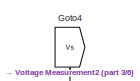
[diagram: root canvas - part 1/6, top left region]
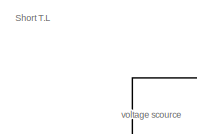
[diagram: root canvas - part 2/6, top left region]
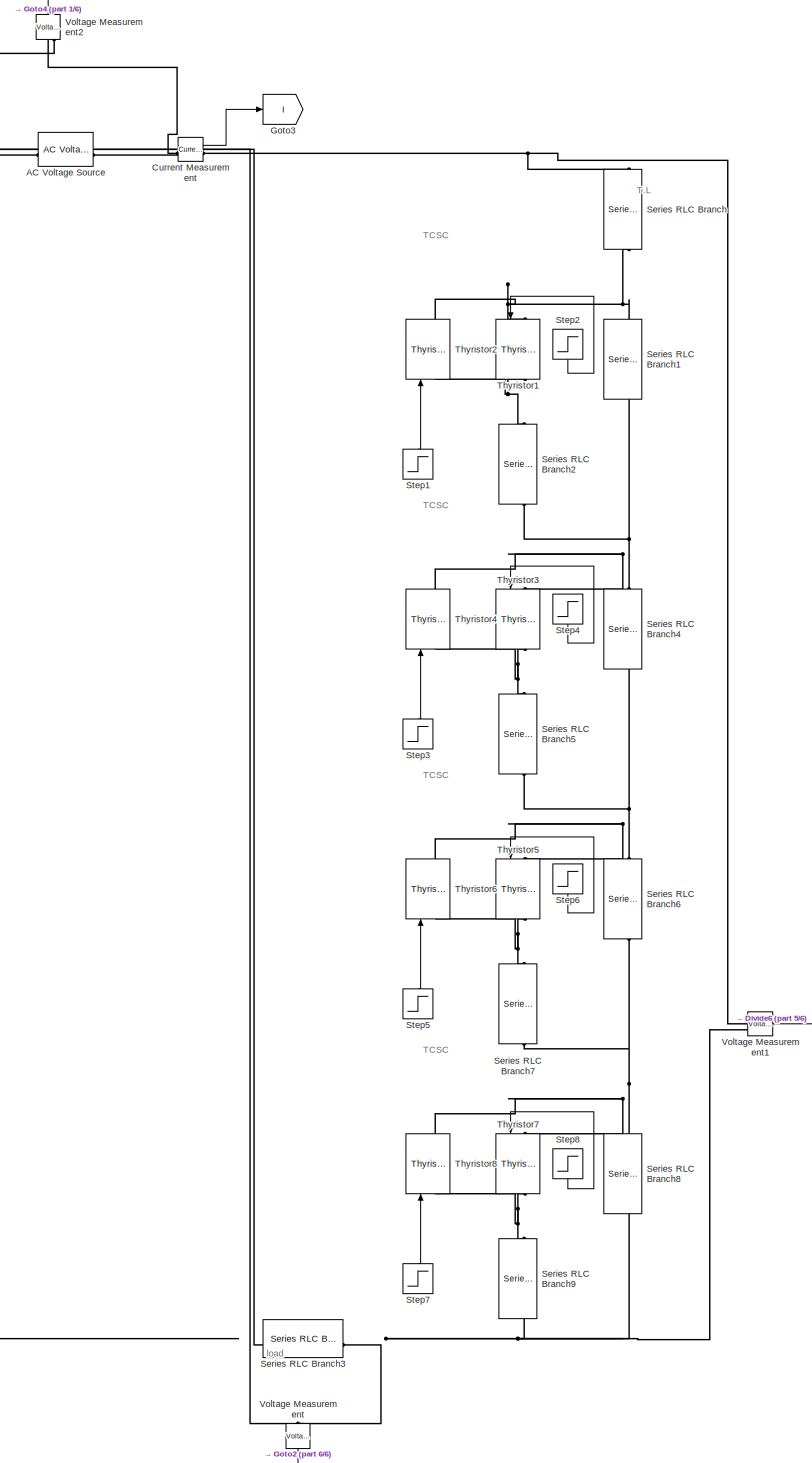
[diagram: root canvas - part 3/6, left side, full height]
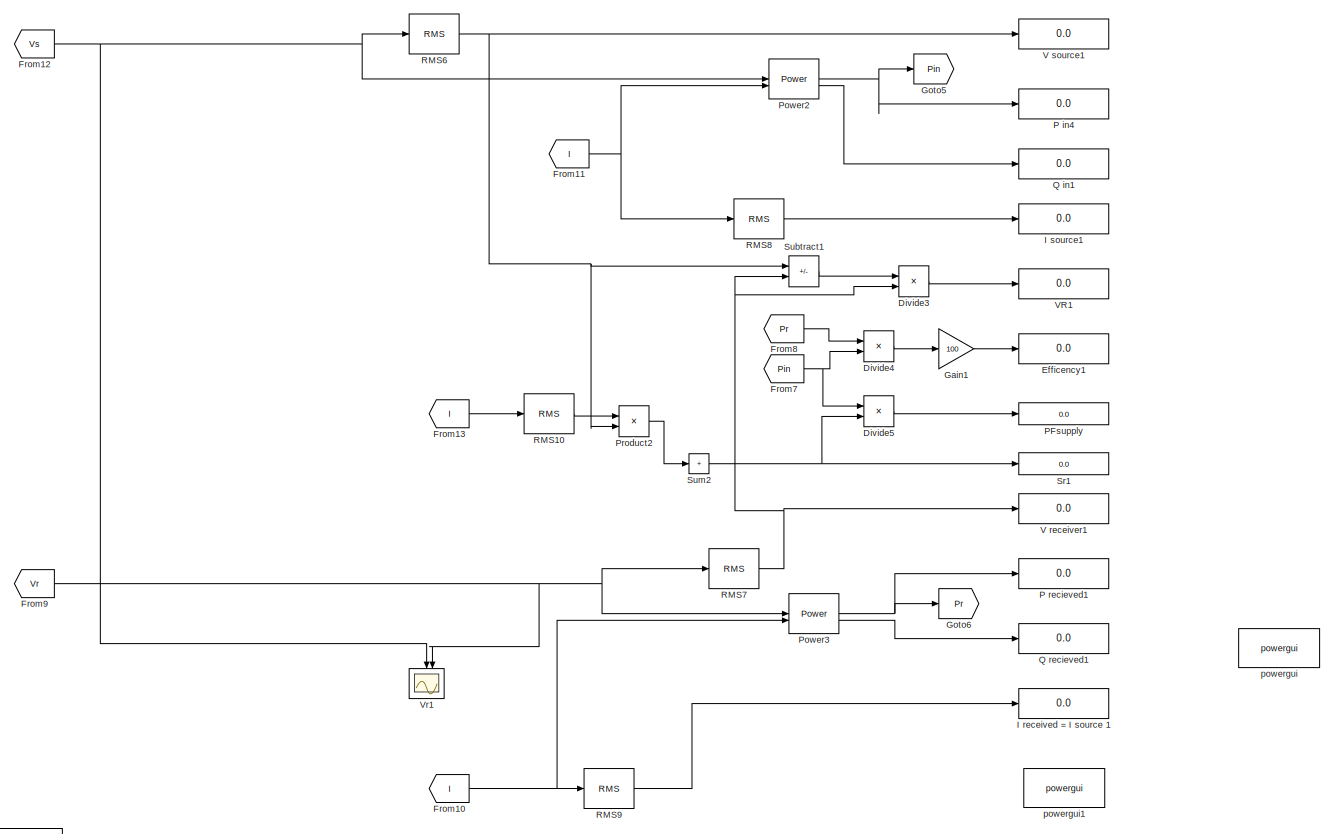
[diagram: root canvas - part 4/6, middle right region]
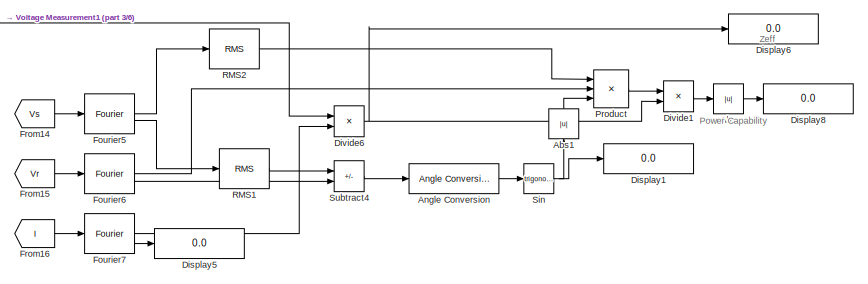
[diagram: root canvas - part 5/6, bottom center region]
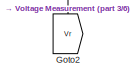
[diagram: root canvas - part 6/6, bottom left region]
MODEL slx_5b7cafe6de2c
KIND model
CONFIG AbsTol = auto
CONFIG EnableMultiTasking = off
CONFIG FixedStep = auto
CONFIG MaxStep = auto
CONFIG MinStep = auto
CONFIG RelTol = 1e-3
CONFIG SampleTimeConstraint = Unconstrained
CONFIG SolverName = VariableStepAuto
CONFIG StartTime = 0.0
CONFIG StopTime = 50
WORKSPACE source: mxarray member
WORKSPACE step = 1
BLOCK [Reference] AC Voltage Source  REF=spsACVoltageSourceLib/AC Voltage Source
  NameLocation = left
  SourceBlock = spsACVoltageSourceLib/AC Voltage Source
  SourceType = AC Voltage Source
BLOCK [Abs] Abs
  SaturateOnIntegerOverflow = off
BLOCK [Abs] Abs1
  NameLocation = right
  SaturateOnIntegerOverflow = off
BLOCK [Reference] Angle Conversion  REF=aerolibconvert2/Angle Conversion
  SourceBlock = aerolibconvert2/Angle Conversion
  SourceType = Angle Conversion
BLOCK [Reference] Current Measurement  REF=spsCurrentMeasurementLib/Current Measurement
  LibrarySourceBlock = sps_lib/Sensors and Measurements/Current Measurement
  SourceBlock = spsCurrentMeasurementLib/Current Measurement
  SourceType = Current Measurement
  UserDataPersistent = on
BLOCK [Display] Display1
  Decimation = 1
BLOCK [Display] Display5
  Decimation = 1
BLOCK [Display] Display6
  Decimation = 1
BLOCK [Display] Display8
  Decimation = 1
BLOCK [Product] Divide1
  Inputs = */
BLOCK [Product] Divide3
  Inputs = */
BLOCK [Product] Divide4
  Inputs = */
BLOCK [Product] Divide5
  Inputs = */
BLOCK [Product] Divide6
  Inputs = */
BLOCK [Display] Efficency1
  Decimation = 1
BLOCK [Reference] Fourier5  REF=spsFourierLib/Fourier
  LibrarySourceBlock = sps_lib/Sensors and Measurements/Fourier
  SourceBlock = spsFourierLib/Fourier
  SourceType = Fourier
BLOCK [Reference] Fourier6  REF=spsFourierLib/Fourier
  LibrarySourceBlock = sps_lib/Sensors and Measurements/Fourier
  SourceBlock = spsFourierLib/Fourier
  SourceType = Fourier
BLOCK [Reference] Fourier7  REF=spsFourierLib/Fourier
  LibrarySourceBlock = sps_lib/Sensors and Measurements/Fourier
  SourceBlock = spsFourierLib/Fourier
  SourceType = Fourier
BLOCK [From] From10
  GotoTag = I
BLOCK [From] From11
  GotoTag = I
BLOCK [From] From12
  GotoTag = Vs
BLOCK [From] From13
  GotoTag = I
BLOCK [From] From14
  GotoTag = Vs
BLOCK [From] From15
  GotoTag = Vr
BLOCK [From] From16
  GotoTag = I
BLOCK [From] From7
  GotoTag = Pin
BLOCK [From] From8
  GotoTag = Pr
BLOCK [From] From9
  GotoTag = Vr
BLOCK [Gain] Gain1
  Gain = 100
BLOCK [Goto] Goto2
  GotoTag = Vr
  NameLocation = left
BLOCK [Goto] Goto3
  GotoTag = I
BLOCK [Goto] Goto4
  GotoTag = Vs
  NameLocation = right
BLOCK [Goto] Goto5
  GotoTag = Pin
BLOCK [Goto] Goto6
  GotoTag = Pr
BLOCK [Display] I received = I source 1
  Decimation = 1
BLOCK [Display] I source1
  Decimation = 1
BLOCK [Display] P in4
  Decimation = 1
BLOCK [Display] P recieved1
  Decimation = 1
BLOCK [Display] PFsupply
  Decimation = 1
BLOCK [Reference] Power2  REF=spsPowerLib/Power
  LibrarySourceBlock = sps_lib/Sensors and Measurements/Power
  SourceBlock = spsPowerLib/Power
  SourceType = Power
BLOCK [Reference] Power3  REF=spsPowerLib/Power
  LibrarySourceBlock = sps_lib/Sensors and Measurements/Power
  SourceBlock = spsPowerLib/Power
  SourceType = Power
BLOCK [Product] Product
  Inputs = 3
BLOCK [Product] Product2
BLOCK [Display] Q in1
  Decimation = 1
BLOCK [Display] Q recieved1
  Decimation = 1
BLOCK [Reference] RMS1  REF=spsRMSLib/RMS
  LibrarySourceBlock = sps_lib/Sensors and Measurements/RMS
  SourceBlock = spsRMSLib/RMS
  SourceType = RMS
BLOCK [Reference] RMS10  REF=spsRMSLib/RMS
  LibrarySourceBlock = sps_lib/Sensors and Measurements/RMS
  SourceBlock = spsRMSLib/RMS
  SourceType = RMS
BLOCK [Reference] RMS2  REF=spsRMSLib/RMS
  LibrarySourceBlock = sps_lib/Sensors and Measurements/RMS
  SourceBlock = spsRMSLib/RMS
  SourceType = RMS
BLOCK [Reference] RMS6  REF=spsRMSLib/RMS
  SourceBlock = spsRMSLib/RMS
  SourceType = RMS
BLOCK [Reference] RMS7  REF=spsRMSLib/RMS
  SourceBlock = spsRMSLib/RMS
  SourceType = RMS
BLOCK [Reference] RMS8  REF=spsRMSLib/RMS
  LibrarySourceBlock = sps_lib/Sensors and Measurements/RMS
  SourceBlock = spsRMSLib/RMS
  SourceType = RMS
BLOCK [Reference] RMS9  REF=spsRMSLib/RMS
  LibrarySourceBlock = sps_lib/Sensors and Measurements/RMS
  SourceBlock = spsRMSLib/RMS
  SourceType = RMS
BLOCK [Reference] Series RLC Branch  REF=spsSeriesRLCBranchLib/Series RLC Branch
  NameLocation = left
  SourceBlock = spsSeriesRLCBranchLib/Series RLC Branch
  SourceType = Series RLC Branch
BLOCK [Reference] Series RLC Branch1  REF=spsSeriesRLCBranchLib/Series RLC Branch
  NameLocation = left
  SourceBlock = spsSeriesRLCBranchLib/Series RLC Branch
  SourceType = Series RLC Branch
BLOCK [Reference] Series RLC Branch2  REF=spsSeriesRLCBranchLib/Series RLC Branch
  NameLocation = left
  SourceBlock = spsSeriesRLCBranchLib/Series RLC Branch
  SourceType = Series RLC Branch
BLOCK [Reference] Series RLC Branch3  REF=spsSeriesRLCBranchLib/Series RLC Branch
  NameLocation = top
  SourceBlock = spsSeriesRLCBranchLib/Series RLC Branch
  SourceType = Series RLC Branch
BLOCK [Reference] Series RLC Branch4  REF=spsSeriesRLCBranchLib/Series RLC Branch
  NameLocation = left
  SourceBlock = spsSeriesRLCBranchLib/Series RLC Branch
  SourceType = Series RLC Branch
BLOCK [Reference] Series RLC Branch5  REF=spsSeriesRLCBranchLib/Series RLC Branch
  NameLocation = left
  SourceBlock = spsSeriesRLCBranchLib/Series RLC Branch
  SourceType = Series RLC Branch
BLOCK [Reference] Series RLC Branch6  REF=spsSeriesRLCBranchLib/Series RLC Branch
  NameLocation = left
  SourceBlock = spsSeriesRLCBranchLib/Series RLC Branch
  SourceType = Series RLC Branch
BLOCK [Reference] Series RLC Branch7  REF=spsSeriesRLCBranchLib/Series RLC Branch
  NameLocation = left
  SourceBlock = spsSeriesRLCBranchLib/Series RLC Branch
  SourceType = Series RLC Branch
BLOCK [Reference] Series RLC Branch8  REF=spsSeriesRLCBranchLib/Series RLC Branch
  NameLocation = left
  SourceBlock = spsSeriesRLCBranchLib/Series RLC Branch
  SourceType = Series RLC Branch
BLOCK [Reference] Series RLC Branch9  REF=spsSeriesRLCBranchLib/Series RLC Branch
  NameLocation = left
  SourceBlock = spsSeriesRLCBranchLib/Series RLC Branch
  SourceType = Series RLC Branch
BLOCK [Trigonometry] Sin
BLOCK [Display] Sr1
  Decimation = 1
BLOCK [Step] Step1
  After = final_step(1)
  NameLocation = right
  SampleTime = 0
  Time = 5
BLOCK [Step] Step2
  After = final_step(1)
  NameLocation = left
  SampleTime = 0
  Time = 5
BLOCK [Step] Step3
  After = final_step(2)
  NameLocation = right
  SampleTime = 0
  Time = 5
BLOCK [Step] Step4
  After = final_step(2)
  NameLocation = left
  SampleTime = 0
  Time = 5
  ZeroCross = off
BLOCK [Step] Step5
  After = final_step(3)
  NameLocation = right
  SampleTime = 0
  Time = 5
BLOCK [Step] Step6
  After = final_step(3)
  NameLocation = left
  SampleTime = 0
  Time = 5
BLOCK [Step] Step7
  After = final_step(4)
  NameLocation = right
  SampleTime = 0
  Time = 5
BLOCK [Step] Step8
  After = final_step(4)
  NameLocation = left
  SampleTime = 0
  Time = 5
BLOCK [Sum] Subtract1
  IconShape = rectangular
  Inputs = +-
BLOCK [Sum] Subtract4
  IconShape = rectangular
  Inputs = +-
BLOCK [Sum] Sum2
  IconShape = rectangular
  Inputs = +
BLOCK [Reference] Thyristor1  REF=spsThyristorLib/Thyristor
  NameLocation = left
  SourceBlock = spsThyristorLib/Thyristor
  SourceType = Thyristor
BLOCK [Reference] Thyristor2  REF=spsThyristorLib/Thyristor
  NameLocation = right
  SourceBlock = spsThyristorLib/Thyristor
  SourceType = Thyristor
BLOCK [Reference] Thyristor3  REF=spsThyristorLib/Thyristor
  NameLocation = left
  SourceBlock = spsThyristorLib/Thyristor
  SourceType = Thyristor
BLOCK [Reference] Thyristor4  REF=spsThyristorLib/Thyristor
  NameLocation = right
  SourceBlock = spsThyristorLib/Thyristor
  SourceType = Thyristor
BLOCK [Reference] Thyristor5  REF=spsThyristorLib/Thyristor
  NameLocation = left
  SourceBlock = spsThyristorLib/Thyristor
  SourceType = Thyristor
BLOCK [Reference] Thyristor6  REF=spsThyristorLib/Thyristor
  NameLocation = right
  SourceBlock = spsThyristorLib/Thyristor
  SourceType = Thyristor
BLOCK [Reference] Thyristor7  REF=spsThyristorLib/Thyristor
  NameLocation = left
  SourceBlock = spsThyristorLib/Thyristor
  SourceType = Thyristor
BLOCK [Reference] Thyristor8  REF=spsThyristorLib/Thyristor
  NameLocation = right
  SourceBlock = spsThyristorLib/Thyristor
  SourceType = Thyristor
BLOCK [Display] V receiver1
  Decimation = 1
BLOCK [Display] V source1
  Decimation = 1
BLOCK [Display] VR1
  Decimation = 1
BLOCK [Reference] Voltage Measurement  REF=spsVoltageMeasurementLib/Voltage Measurement
  NameLocation = left
  SourceBlock = spsVoltageMeasurementLib/Voltage Measurement
  SourceType = Voltage Measurement
  UserDataPersistent = on
BLOCK [Reference] Voltage Measurement1  REF=spsVoltageMeasurementLib/Voltage Measurement
  SourceBlock = spsVoltageMeasurementLib/Voltage Measurement
  SourceType = Voltage Measurement
  UserDataPersistent = on
BLOCK [Reference] Voltage Measurement2  REF=spsVoltageMeasurementLib/Voltage Measurement
  NameLocation = right
  SourceBlock = spsVoltageMeasurementLib/Voltage Measurement
  SourceType = Voltage Measurement
  UserDataPersistent = on
BLOCK [Scope] Vr1
  Floating = off
  NameLocation = left
  NumInputPorts = 2
  ScopeSpecificationString = Simulink.scopes.TimeScopeBlockCfg('CurrentConfiguration', extmgr.ConfigurationSet(extmgr.Configuration('Core','General UI',true),extmgr.Configuration('Core','Source UI',true),extmgr.Configuration('Sources','WiredSimulink',true,'DataLoggingVariableName','ScopeData1'),extmgr.Configuration('Visuals','Time Domain',true,'SerializedDisplays',{struct('MinYLimReal','-290798.17261','MaxYLimReal','285699.53...<+1633ch>
BLOCK [Reference] powergui  REF=sps_lib/powergui
  Priority = 1
  SourceBlock = sps_lib/powergui
  SourceType = PSB option menu block
BLOCK [Reference] powergui1  REF=spspowerguiLib/powergui
  Priority = 1
  SourceBlock = spspowerguiLib/powergui
  SourceType = PSB option menu block
ANNOTATION (root): T.L
ANNOTATION (root): TCSC
ANNOTATION (root): load
ANNOTATION (root): voltage scource
ANNOTATION (root): Short T.L
ANNOTATION (root): Power Capability
ANNOTATION (root): Zeff
LINE Abs1:1 -> Product:3
LINE Abs:1 -> Display8:1
LINE Angle Conversion:1 -> Sin:1
LINE Current Measurement:1 -> Goto3:1
LINE Divide1:1 -> Abs:1
LINE Divide3:1 -> VR1:1
LINE Divide4:1 -> Gain1:1
LINE Divide5:1 -> PFsupply:1
NET Divide6:1 -> Display6:1, Divide1:2
LINE Fourier5:1 -> RMS2:1
LINE Fourier5:2 -> RMS1:1
LINE Fourier6:1 -> Product:2
LINE Fourier6:2 -> Subtract4:2
LINE Fourier7:1 -> Divide6:2
LINE Fourier7:2 -> Display5:1
NET From10:1 -> Power3:2, RMS9:1
NET From11:1 -> Power2:2, RMS8:1
NET From12:1 -> Power2:1, RMS6:1, Vr1:1
LINE From13:1 -> RMS10:1
LINE From14:1 -> Fourier5:1
LINE From15:1 -> Fourier6:1
LINE From16:1 -> Fourier7:1
NET From7:1 -> Divide4:2, Divide5:1
LINE From8:1 -> Divide4:1
NET From9:1 -> Power3:1, RMS7:1, Vr1:2
LINE Gain1:1 -> Efficency1:1
NET Power2:1 -> Goto5:1, P in4:1
LINE Power2:2 -> Q in1:1
NET Power3:1 -> Goto6:1, P recieved1:1
LINE Power3:2 -> Q recieved1:1
LINE Product2:1 -> Sum2:1
LINE Product:1 -> Divide1:1
LINE RMS10:1 -> Product2:1
LINE RMS1:1 -> Subtract4:1
LINE RMS2:1 -> Product:1
NET RMS6:1 -> Product2:2, Subtract1:1, V source1:1
NET RMS7:1 -> Divide3:2, Subtract1:2, V receiver1:1
LINE RMS8:1 -> I source1:1
LINE RMS9:1 -> I received = I source 1:1
NET Sin:1 -> Abs1:1, Display1:1
LINE Step1:1 -> Thyristor2:1
LINE Step2:1 -> Thyristor1:1
LINE Step3:1 -> Thyristor4:1
LINE Step4:1 -> Thyristor3:1
LINE Step5:1 -> Thyristor6:1
LINE Step6:1 -> Thyristor5:1
LINE Step7:1 -> Thyristor8:1
LINE Step8:1 -> Thyristor7:1
LINE Subtract1:1 -> Divide3:1
LINE Subtract4:1 -> Angle Conversion:1
NET Sum2:1 -> Divide5:2, Sr1:1
LINE Voltage Measurement1:1 -> Divide6:1
LINE Voltage Measurement2:1 -> Goto4:1
LINE Voltage Measurement:1 -> Goto2:1
PNET net1: AC Voltage Source:LConn1 -- Series RLC Branch3:RConn1 -- Voltage Measurement2:LConn2 -- Voltage Measurement:LConn2
PNET net2: AC Voltage Source:RConn1 -- Current Measurement:LConn1 -- Voltage Measurement2:LConn1
PNET net3: Current Measurement:RConn1 -- Series RLC Branch:LConn1 -- Voltage Measurement1:LConn1
PNET net4: Series RLC Branch1:LConn1 -- Series RLC Branch:RConn1 -- Thyristor1:LConn1 -- Thyristor2:RConn1
PNET net5: Series RLC Branch1:RConn1 -- Series RLC Branch2:RConn1 -- Series RLC Branch4:LConn1 -- Thyristor3:LConn1 -- Thyristor4:RConn1
PNET net6: Series RLC Branch2:LConn1 -- Thyristor1:RConn1 -- Thyristor2:LConn1
PNET net7: Series RLC Branch3:LConn1 -- Series RLC Branch8:RConn1 -- Series RLC Branch9:RConn1 -- Voltage Measurement1:LConn2 -- Voltage Measurement:LConn1
PNET net8: Series RLC Branch4:RConn1 -- Series RLC Branch5:RConn1 -- Series RLC Branch6:LConn1 -- Thyristor5:LConn1 -- Thyristor6:RConn1
PNET net9: Series RLC Branch5:LConn1 -- Thyristor3:RConn1 -- Thyristor4:LConn1
PNET net10: Series RLC Branch6:RConn1 -- Series RLC Branch7:RConn1 -- Series RLC Branch8:LConn1 -- Thyristor7:LConn1 -- Thyristor8:RConn1
PNET net11: Series RLC Branch7:LConn1 -- Thyristor5:RConn1 -- Thyristor6:LConn1
PNET net12: Series RLC Branch9:LConn1 -- Thyristor7:RConn1 -- Thyristor8:LConn1
note: NET lines group one-source signal fan-out (src -> all destinations, sorted); 1:1 wires keep LINE; PNET lines group multi-terminal physical nets as a canonical sorted terminal list (undirected conserving connections); 2-terminal nets keep the pairwise PLINE form
